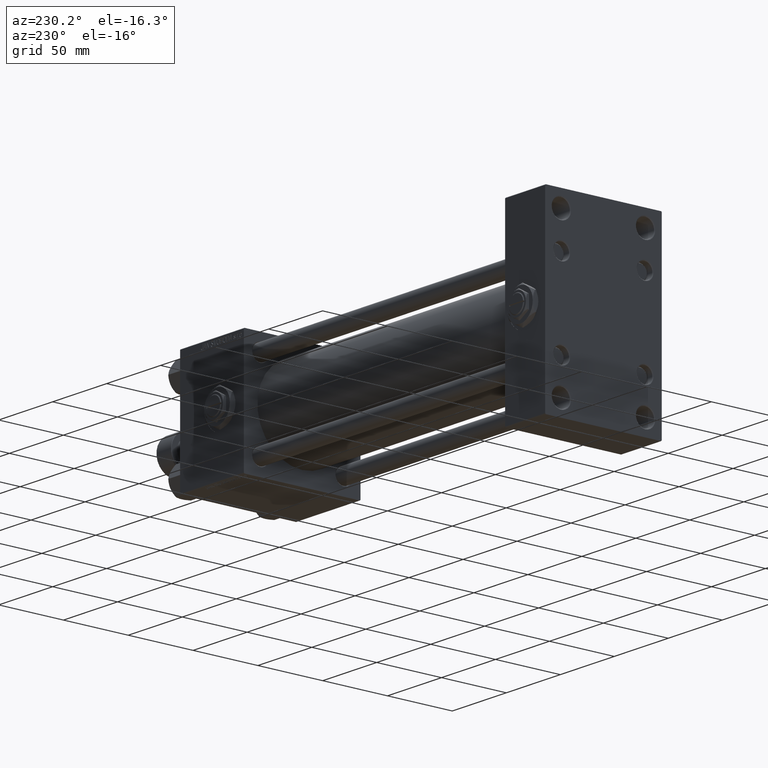
[diagram: clean part render]
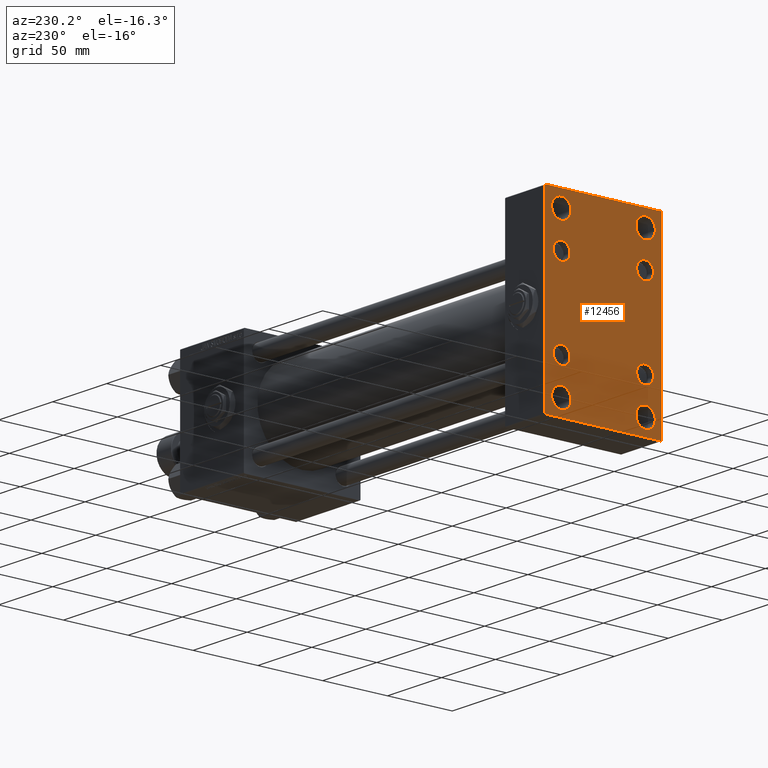
[diagram: same view with one face highlighted and labeled with its STEP entity id]
A machine part, auxiliary view. The second image highlights one B-rep face of the part: STEP entity #12456.
In plain terms, the highlighted planar face has unit normal (-1, 0, 0).
Its self-contained STEP definition (entity closure, byte-faithful):
#144 = EDGE_CURVE ( 'NONE', #41813, #19771, #34160, .T. ) ;
#221 = AXIS2_PLACEMENT_3D ( 'NONE', #839, #5359, #49994 ) ;
#443 = EDGE_CURVE ( 'NONE', #27860, #31811, #31834, .T. ) ;
#830 = CARTESIAN_POINT ( 'NONE',  ( 0.000000000000000000, -32.14999999999997726, 25.64999999999997726 ) ) ;
#839 = CARTESIAN_POINT ( 'NONE',  ( 0.000000000000000000, -32.14999999999997726, 32.15000000000001279 ) ) ;
#847 = DIRECTION ( 'NONE',  ( 1.000000000000000000, 0.000000000000000000, 0.000000000000000000 ) ) ;
#853 = CARTESIAN_POINT ( 'NONE',  ( 0.000000000000000000, -44.49999999999999289, 70.99999999999998579 ) ) ;
#1151 = EDGE_LOOP ( 'NONE', ( #48246, #41566 ) ) ;
#1348 = EDGE_LOOP ( 'NONE', ( #43045, #8161 ) ) ;
#1645 = CARTESIAN_POINT ( 'NONE',  ( 0.000000000000000000, 32.50000000000000000, 58.50000000000000000 ) ) ;
#1911 = DIRECTION ( 'NONE',  ( 1.000000000000000000, 0.000000000000000000, 0.000000000000000000 ) ) ;
#2572 = CARTESIAN_POINT ( 'NONE',  ( 0.000000000000000000, -45.00000000000000000, -70.50000000000000000 ) ) ;
#2639 = CARTESIAN_POINT ( 'NONE',  ( 0.000000000000000000, 32.14999999999999147, -32.15000000000000568 ) ) ;
#2861 = VERTEX_POINT ( 'NONE', #26474 ) ;
#3067 = EDGE_LOOP ( 'NONE', ( #27948, #37226, #22742, #25327, #51938, #15628, #32520, #5751 ) ) ;
#3335 = EDGE_LOOP ( 'NONE', ( #13355, #30677 ) ) ;
#3740 = CARTESIAN_POINT ( 'NONE',  ( 0.000000000000000000, -32.50000000000000000, -50.99999999999972289 ) ) ;
#4078 = AXIS2_PLACEMENT_3D ( 'NONE', #43390, #19717, #40197 ) ;
#4522 = DIRECTION ( 'NONE',  ( 1.000000000000000000, 0.000000000000000000, 0.000000000000000000 ) ) ;
#4937 = FACE_BOUND ( 'NONE', #46767, .T. ) ;
#4965 = EDGE_LOOP ( 'NONE', ( #5944, #6398 ) ) ;
#5199 = VERTEX_POINT ( 'NONE', #36738 ) ;
#5249 = EDGE_CURVE ( 'NONE', #5199, #6875, #21559, .T. ) ;
#5359 = DIRECTION ( 'NONE',  ( 1.000000000000000000, 0.000000000000000000, 0.000000000000000000 ) ) ;
#5751 = ORIENTED_EDGE ( 'NONE', *, *, #5249, .T. ) ;
#5870 = EDGE_CURVE ( 'NONE', #5199, #31811, #6456, .T. ) ;
#5905 = CARTESIAN_POINT ( 'NONE',  ( 0.000000000000000000, -44.49999999999999289, -70.99999999999998579 ) ) ;
#5944 = ORIENTED_EDGE ( 'NONE', *, *, #16408, .T. ) ;
#5997 = CARTESIAN_POINT ( 'NONE',  ( 0.000000000000000000, -32.14999999999997726, -32.15000000000001279 ) ) ;
#6159 = DIRECTION ( 'NONE',  ( 0.000000000000000000, 0.000000000000000000, 1.000000000000000000 ) ) ;
#6398 = ORIENTED_EDGE ( 'NONE', *, *, #34813, .T. ) ;
#6456 = LINE ( 'NONE', #26351, #26737 ) ;
#6797 = AXIS2_PLACEMENT_3D ( 'NONE', #5997, #46119, #41608 ) ;
#6815 = DIRECTION ( 'NONE',  ( 0.000000000000000000, 0.000000000000000000, 1.000000000000000000 ) ) ;
#6875 = VERTEX_POINT ( 'NONE', #9333 ) ;
#6933 = VERTEX_POINT ( 'NONE', #50516 ) ;
#7506 = CIRCLE ( 'NONE', #38898, 6.500000000000033751 ) ;
#7601 = DIRECTION ( 'NONE',  ( 1.000000000000000000, 0.000000000000000000, 0.000000000000000000 ) ) ;
#7934 = ORIENTED_EDGE ( 'NONE', *, *, #26421, .T. ) ;
#7939 = FACE_BOUND ( 'NONE', #10779, .T. ) ;
#8161 = ORIENTED_EDGE ( 'NONE', *, *, #41510, .T. ) ;
#8388 = EDGE_CURVE ( 'NONE', #52343, #27782, #42986, .T. ) ;
#8783 = EDGE_CURVE ( 'NONE', #46195, #21022, #48120, .T. ) ;
#9333 = CARTESIAN_POINT ( 'NONE',  ( 0.000000000000000000, 45.00000000000000711, 70.50000000000000000 ) ) ;
#9460 = CIRCLE ( 'NONE', #10298, 7.500000000000284217 ) ;
#10151 = CARTESIAN_POINT ( 'NONE',  ( -0.000000000000000000, 57.74999999999938183, 57.75000000000098055 ) ) ;
#10177 = LINE ( 'NONE', #10963, #22885 ) ;
#10298 = AXIS2_PLACEMENT_3D ( 'NONE', #38295, #46008, #10379 ) ;
#10379 = DIRECTION ( 'NONE',  ( 0.000000000000000000, 0.000000000000000000, 1.000000000000000000 ) ) ;
#10779 = EDGE_LOOP ( 'NONE', ( #39198, #38457 ) ) ;
#10785 = DIRECTION ( 'NONE',  ( 0.000000000000000000, 0.000000000000000000, -1.000000000000000000 ) ) ;
#10963 = CARTESIAN_POINT ( 'NONE',  ( 0.000000000000000000, -57.74999999999968026, -57.75000000000048317 ) ) ;
#11049 = CARTESIAN_POINT ( 'NONE',  ( 0.000000000000000000, 32.50000000000000000, -58.50000000000000711 ) ) ;
#11667 = PLANE ( 'NONE',  #36343 ) ;
#11874 = CIRCLE ( 'NONE', #6797, 6.500000000000033751 ) ;
#12142 = EDGE_CURVE ( 'NONE', #49798, #33621, #7506, .T. ) ;
#12456 = ADVANCED_FACE ( 'NONE', ( #4937, #17390, #7939, #33593, #49823, #31850, #27864, #15904, #48079 ), #11667, .T. ) ;
#12743 = CARTESIAN_POINT ( 'NONE',  ( 0.000000000000000000, 32.14999999999999147, 32.15000000000000568 ) ) ;
#13355 = ORIENTED_EDGE ( 'NONE', *, *, #18734, .T. ) ;
#13972 = VECTOR ( 'NONE', #17349, 1000.000000000000000 ) ;
#14079 = CARTESIAN_POINT ( 'NONE',  ( 0.000000000000000000, -32.50000000000000000, 66.00000000000022737 ) ) ;
#14835 = CARTESIAN_POINT ( 'NONE',  ( 0.000000000000000000, -45.00000000000000000, 70.49999999999998579 ) ) ;
#15628 = ORIENTED_EDGE ( 'NONE', *, *, #443, .T. ) ;
#15895 = DIRECTION ( 'NONE',  ( 1.000000000000000000, 0.000000000000000000, 0.000000000000000000 ) ) ;
#15904 = FACE_BOUND ( 'NONE', #38084, .T. ) ;
#16356 = VERTEX_POINT ( 'NONE', #19734 ) ;
#16408 = EDGE_CURVE ( 'NONE', #17199, #41417, #49987, .T. ) ;
#16982 = DIRECTION ( 'NONE',  ( -0.000000000000000000, -0.7071067811865279218, -0.7071067811865671127 ) ) ;
#17035 = DIRECTION ( 'NONE',  ( 0.000000000000000000, 0.000000000000000000, 1.000000000000000000 ) ) ;
#17199 = VERTEX_POINT ( 'NONE', #14079 ) ;
#17349 = DIRECTION ( 'NONE',  ( 0.000000000000000000, 0.000000000000000000, -1.000000000000000000 ) ) ;
#17359 = VECTOR ( 'NONE', #50014, 1000.000000000000000 ) ;
#17390 = FACE_BOUND ( 'NONE', #4965, .T. ) ;
#17783 = LINE ( 'NONE', #33981, #42882 ) ;
#18044 = CIRCLE ( 'NONE', #221, 6.500000000000033751 ) ;
#18092 = VECTOR ( 'NONE', #48063, 1000.000000000000000 ) ;
#18160 = ORIENTED_EDGE ( 'NONE', *, *, #12142, .T. ) ;
#18340 = VERTEX_POINT ( 'NONE', #46452 ) ;
#18344 = CARTESIAN_POINT ( 'NONE',  ( 0.000000000000000000, 32.14999999999999147, 38.65000000000004832 ) ) ;
#18375 = CIRCLE ( 'NONE', #49661, 6.500000000000033751 ) ;
#18734 = EDGE_CURVE ( 'NONE', #38402, #32702, #11874, .T. ) ;
#18889 = DIRECTION ( 'NONE',  ( 1.000000000000000000, 0.000000000000000000, 0.000000000000000000 ) ) ;
#18984 = CIRCLE ( 'NONE', #35995, 7.500000000000214939 ) ;
#19040 = EDGE_CURVE ( 'NONE', #35217, #28137, #10177, .T. ) ;
#19105 = CIRCLE ( 'NONE', #50399, 6.500000000000033751 ) ;
#19717 = DIRECTION ( 'NONE',  ( 1.000000000000000000, 0.000000000000000000, 0.000000000000000000 ) ) ;
#19734 = CARTESIAN_POINT ( 'NONE',  ( 0.000000000000000000, 32.50000000000000000, -66.00000000000028422 ) ) ;
#19771 = VERTEX_POINT ( 'NONE', #49571 ) ;
#21022 = VERTEX_POINT ( 'NONE', #47110 ) ;
#21559 = LINE ( 'NONE', #10151, #17359 ) ;
#22447 = ORIENTED_EDGE ( 'NONE', *, *, #44434, .T. ) ;
#22678 = DIRECTION ( 'NONE',  ( 0.000000000000000000, 0.000000000000000000, 1.000000000000000000 ) ) ;
#22742 = ORIENTED_EDGE ( 'NONE', *, *, #49343, .T. ) ;
#22885 = VECTOR ( 'NONE', #30364, 1000.000000000000000 ) ;
#23422 = DIRECTION ( 'NONE',  ( 0.000000000000000000, 0.000000000000000000, 1.000000000000000000 ) ) ;
#23864 = DIRECTION ( 'NONE',  ( -1.000000000000000000, 0.000000000000000000, -0.000000000000000000 ) ) ;
#24291 = EDGE_LOOP ( 'NONE', ( #7934, #36819 ) ) ;
#24307 = AXIS2_PLACEMENT_3D ( 'NONE', #2639, #15895, #47004 ) ;
#24788 = EDGE_CURVE ( 'NONE', #27860, #28137, #26986, .T. ) ;
#24953 = DIRECTION ( 'NONE',  ( 1.000000000000000000, 0.000000000000000000, 0.000000000000000000 ) ) ;
#25327 = ORIENTED_EDGE ( 'NONE', *, *, #19040, .T. ) ;
#25360 = VERTEX_POINT ( 'NONE', #38027 ) ;
#26228 = AXIS2_PLACEMENT_3D ( 'NONE', #40731, #847, #17035 ) ;
#26351 = CARTESIAN_POINT ( 'NONE',  ( 0.000000000000000000, 45.00000000000000711, 71.00000000000000000 ) ) ;
#26421 = EDGE_CURVE ( 'NONE', #25360, #16356, #9460, .T. ) ;
#26474 = CARTESIAN_POINT ( 'NONE',  ( 0.000000000000000000, 44.50000000000002132, -70.99999999999998579 ) ) ;
#26660 = DIRECTION ( 'NONE',  ( 1.000000000000000000, 0.000000000000000000, 0.000000000000000000 ) ) ;
#26714 = CARTESIAN_POINT ( 'NONE',  ( 0.000000000000000000, 32.50000000000000000, 66.00000000000022737 ) ) ;
#26737 = VECTOR ( 'NONE', #38870, 1000.000000000000000 ) ;
#26803 = CARTESIAN_POINT ( 'NONE',  ( 0.000000000000000000, -32.14999999999997726, 32.15000000000001279 ) ) ;
#26815 = AXIS2_PLACEMENT_3D ( 'NONE', #1645, #1911, #6159 ) ;
#26986 = LINE ( 'NONE', #31231, #39218 ) ;
#27782 = VERTEX_POINT ( 'NONE', #31302 ) ;
#27860 = VERTEX_POINT ( 'NONE', #14835 ) ;
#27864 = FACE_BOUND ( 'NONE', #1151, .T. ) ;
#27948 = ORIENTED_EDGE ( 'NONE', *, *, #50554, .T. ) ;
#28137 = VERTEX_POINT ( 'NONE', #2572 ) ;
#28943 = DIRECTION ( 'NONE',  ( 0.000000000000000000, 0.000000000000000000, 1.000000000000000000 ) ) ;
#29040 = LINE ( 'NONE', #37556, #13972 ) ;
#29173 = VECTOR ( 'NONE', #38208, 1000.000000000000000 ) ;
#30037 = AXIS2_PLACEMENT_3D ( 'NONE', #36663, #4522, #36928 ) ;
#30364 = DIRECTION ( 'NONE',  ( 0.000000000000000000, -0.7071067811865524577, 0.7071067811865426878 ) ) ;
#30677 = ORIENTED_EDGE ( 'NONE', *, *, #48751, .T. ) ;
#30845 = CARTESIAN_POINT ( 'NONE',  ( 0.000000000000000000, 32.14999999999999147, 32.15000000000000568 ) ) ;
#30879 = AXIS2_PLACEMENT_3D ( 'NONE', #26803, #43025, #38517 ) ;
#30925 = DIRECTION ( 'NONE',  ( 0.000000000000000000, 0.000000000000000000, 1.000000000000000000 ) ) ;
#30963 = DIRECTION ( 'NONE',  ( 0.000000000000000000, 0.000000000000000000, 1.000000000000000000 ) ) ;
#31231 = CARTESIAN_POINT ( 'NONE',  ( 0.000000000000000000, -45.00000000000000000, 70.99999999999998579 ) ) ;
#31302 = CARTESIAN_POINT ( 'NONE',  ( 0.000000000000000000, 32.50000000000000000, 50.99999999999977263 ) ) ;
#31401 = DIRECTION ( 'NONE',  ( 1.000000000000000000, 0.000000000000000000, 0.000000000000000000 ) ) ;
#31811 = VERTEX_POINT ( 'NONE', #853 ) ;
#31834 = LINE ( 'NONE', #39568, #18092 ) ;
#31850 = FACE_BOUND ( 'NONE', #3335, .T. ) ;
#31944 = EDGE_CURVE ( 'NONE', #6933, #40574, #48684, .T. ) ;
#32520 = ORIENTED_EDGE ( 'NONE', *, *, #5870, .F. ) ;
#32702 = VERTEX_POINT ( 'NONE', #36238 ) ;
#33527 = CIRCLE ( 'NONE', #35220, 7.500000000000229150 ) ;
#33593 = FACE_BOUND ( 'NONE', #24291, .T. ) ;
#33621 = VERTEX_POINT ( 'NONE', #40240 ) ;
#33981 = CARTESIAN_POINT ( 'NONE',  ( -0.000000000000000000, 57.75000000000122924, -57.74999999999802469 ) ) ;
#34160 = CIRCLE ( 'NONE', #30037, 7.500000000000284217 ) ;
#34813 = EDGE_CURVE ( 'NONE', #41417, #17199, #33527, .T. ) ;
#35217 = VERTEX_POINT ( 'NONE', #5905 ) ;
#35220 = AXIS2_PLACEMENT_3D ( 'NONE', #46873, #26660, #22678 ) ;
#35658 = CARTESIAN_POINT ( 'NONE',  ( 0.000000000000000000, -32.14999999999997726, -32.15000000000001279 ) ) ;
#35684 = CARTESIAN_POINT ( 'NONE',  ( 0.000000000000000000, -32.50000000000000000, 50.99999999999976552 ) ) ;
#35751 = CARTESIAN_POINT ( 'NONE',  ( 0.000000000000000000, -32.50000000000000000, -58.50000000000000711 ) ) ;
#35880 = AXIS2_PLACEMENT_3D ( 'NONE', #11049, #7601, #6815 ) ;
#35995 = AXIS2_PLACEMENT_3D ( 'NONE', #47684, #47954, #30925 ) ;
#36238 = CARTESIAN_POINT ( 'NONE',  ( 0.000000000000000000, -32.14999999999997726, -38.65000000000004832 ) ) ;
#36343 = AXIS2_PLACEMENT_3D ( 'NONE', #44091, #23864, #40103 ) ;
#36663 = CARTESIAN_POINT ( 'NONE',  ( 0.000000000000000000, -32.50000000000000000, -58.50000000000000711 ) ) ;
#36738 = CARTESIAN_POINT ( 'NONE',  ( 0.000000000000000000, 44.50000000000000711, 71.00000000000000000 ) ) ;
#36819 = ORIENTED_EDGE ( 'NONE', *, *, #42510, .T. ) ;
#36928 = DIRECTION ( 'NONE',  ( 0.000000000000000000, 0.000000000000000000, 1.000000000000000000 ) ) ;
#37226 = ORIENTED_EDGE ( 'NONE', *, *, #37651, .T. ) ;
#37473 = EDGE_CURVE ( 'NONE', #33621, #49798, #18375, .T. ) ;
#37556 = CARTESIAN_POINT ( 'NONE',  ( 0.000000000000000000, 45.00000000000000711, 71.00000000000000000 ) ) ;
#37578 = AXIS2_PLACEMENT_3D ( 'NONE', #35751, #51969, #30963 ) ;
#37651 = EDGE_CURVE ( 'NONE', #18340, #2861, #17783, .T. ) ;
#38027 = CARTESIAN_POINT ( 'NONE',  ( 0.000000000000000000, 32.50000000000000000, -50.99999999999972289 ) ) ;
#38084 = EDGE_LOOP ( 'NONE', ( #18160, #47031 ) ) ;
#38208 = DIRECTION ( 'NONE',  ( 0.000000000000000000, -1.000000000000000000, 0.000000000000000000 ) ) ;
#38295 = CARTESIAN_POINT ( 'NONE',  ( 0.000000000000000000, 32.50000000000000000, -58.50000000000000711 ) ) ;
#38402 = VERTEX_POINT ( 'NONE', #44476 ) ;
#38457 = ORIENTED_EDGE ( 'NONE', *, *, #42573, .T. ) ;
#38466 = CIRCLE ( 'NONE', #37578, 7.500000000000284217 ) ;
#38517 = DIRECTION ( 'NONE',  ( 0.000000000000000000, 0.000000000000000000, 1.000000000000000000 ) ) ;
#38870 = DIRECTION ( 'NONE',  ( 0.000000000000000000, -1.000000000000000000, -1.541976423090495387E-16 ) ) ;
#38898 = AXIS2_PLACEMENT_3D ( 'NONE', #12743, #24953, #28943 ) ;
#39198 = ORIENTED_EDGE ( 'NONE', *, *, #144, .T. ) ;
#39218 = VECTOR ( 'NONE', #10785, 1000.000000000000000 ) ;
#39298 = CIRCLE ( 'NONE', #35880, 7.500000000000284217 ) ;
#39568 = CARTESIAN_POINT ( 'NONE',  ( -0.000000000000000000, -57.75000000000092371, 57.74999999999852207 ) ) ;
#40103 = DIRECTION ( 'NONE',  ( -0.000000000000000000, 0.000000000000000000, 1.000000000000000000 ) ) ;
#40197 = DIRECTION ( 'NONE',  ( 0.000000000000000000, 0.000000000000000000, 1.000000000000000000 ) ) ;
#40240 = CARTESIAN_POINT ( 'NONE',  ( 0.000000000000000000, 32.14999999999999147, 25.64999999999997016 ) ) ;
#40485 = EDGE_CURVE ( 'NONE', #21022, #46195, #42264, .T. ) ;
#40574 = VERTEX_POINT ( 'NONE', #830 ) ;
#40731 = CARTESIAN_POINT ( 'NONE',  ( 0.000000000000000000, -32.50000000000000000, 58.50000000000000000 ) ) ;
#41417 = VERTEX_POINT ( 'NONE', #35684 ) ;
#41510 = EDGE_CURVE ( 'NONE', #40574, #6933, #18044, .T. ) ;
#41566 = ORIENTED_EDGE ( 'NONE', *, *, #8783, .T. ) ;
#41608 = DIRECTION ( 'NONE',  ( 0.000000000000000000, 0.000000000000000000, 1.000000000000000000 ) ) ;
#41813 = VERTEX_POINT ( 'NONE', #3740 ) ;
#42264 = CIRCLE ( 'NONE', #4078, 6.499999999999977796 ) ;
#42510 = EDGE_CURVE ( 'NONE', #16356, #25360, #39298, .T. ) ;
#42573 = EDGE_CURVE ( 'NONE', #19771, #41813, #38466, .T. ) ;
#42882 = VECTOR ( 'NONE', #16982, 1000.000000000000000 ) ;
#42986 = CIRCLE ( 'NONE', #26815, 7.500000000000214939 ) ;
#43025 = DIRECTION ( 'NONE',  ( 1.000000000000000000, 0.000000000000000000, 0.000000000000000000 ) ) ;
#43045 = ORIENTED_EDGE ( 'NONE', *, *, #31944, .T. ) ;
#43353 = DIRECTION ( 'NONE',  ( 0.000000000000000000, 0.000000000000000000, 1.000000000000000000 ) ) ;
#43390 = CARTESIAN_POINT ( 'NONE',  ( 0.000000000000000000, 32.14999999999999147, -32.15000000000000568 ) ) ;
#44091 = CARTESIAN_POINT ( 'NONE',  ( 0.000000000000000000, 0.000000000000000000, 0.000000000000000000 ) ) ;
#44434 = EDGE_CURVE ( 'NONE', #27782, #52343, #18984, .T. ) ;
#44476 = CARTESIAN_POINT ( 'NONE',  ( 0.000000000000000000, -32.14999999999997726, -25.64999999999997726 ) ) ;
#44917 = CARTESIAN_POINT ( 'NONE',  ( 0.000000000000000000, 32.14999999999999147, -38.64999999999998437 ) ) ;
#46008 = DIRECTION ( 'NONE',  ( 1.000000000000000000, 0.000000000000000000, 0.000000000000000000 ) ) ;
#46119 = DIRECTION ( 'NONE',  ( 1.000000000000000000, 0.000000000000000000, 0.000000000000000000 ) ) ;
#46195 = VERTEX_POINT ( 'NONE', #44917 ) ;
#46452 = CARTESIAN_POINT ( 'NONE',  ( 0.000000000000000000, 45.00000000000000711, -70.49999999999997158 ) ) ;
#46705 = CARTESIAN_POINT ( 'NONE',  ( 0.000000000000000000, 45.00000000000000711, -70.99999999999998579 ) ) ;
#46767 = EDGE_LOOP ( 'NONE', ( #49200, #22447 ) ) ;
#46873 = CARTESIAN_POINT ( 'NONE',  ( 0.000000000000000000, -32.50000000000000000, 58.50000000000000000 ) ) ;
#47004 = DIRECTION ( 'NONE',  ( 0.000000000000000000, 0.000000000000000000, 1.000000000000000000 ) ) ;
#47031 = ORIENTED_EDGE ( 'NONE', *, *, #37473, .T. ) ;
#47110 = CARTESIAN_POINT ( 'NONE',  ( 0.000000000000000000, 32.14999999999999147, -25.65000000000002700 ) ) ;
#47684 = CARTESIAN_POINT ( 'NONE',  ( 0.000000000000000000, 32.50000000000000000, 58.50000000000000000 ) ) ;
#47954 = DIRECTION ( 'NONE',  ( 1.000000000000000000, 0.000000000000000000, 0.000000000000000000 ) ) ;
#48063 = DIRECTION ( 'NONE',  ( -0.000000000000000000, 0.7071067811865328068, 0.7071067811865622277 ) ) ;
#48079 = FACE_OUTER_BOUND ( 'NONE', #3067, .T. ) ;
#48120 = CIRCLE ( 'NONE', #24307, 6.499999999999977796 ) ;
#48246 = ORIENTED_EDGE ( 'NONE', *, *, #40485, .T. ) ;
#48684 = CIRCLE ( 'NONE', #30879, 6.500000000000033751 ) ;
#48751 = EDGE_CURVE ( 'NONE', #32702, #38402, #19105, .T. ) ;
#49200 = ORIENTED_EDGE ( 'NONE', *, *, #8388, .T. ) ;
#49343 = EDGE_CURVE ( 'NONE', #2861, #35217, #51486, .T. ) ;
#49571 = CARTESIAN_POINT ( 'NONE',  ( 0.000000000000000000, -32.50000000000000000, -66.00000000000028422 ) ) ;
#49661 = AXIS2_PLACEMENT_3D ( 'NONE', #30845, #18889, #43353 ) ;
#49798 = VERTEX_POINT ( 'NONE', #18344 ) ;
#49823 = FACE_BOUND ( 'NONE', #1348, .T. ) ;
#49987 = CIRCLE ( 'NONE', #26228, 7.500000000000229150 ) ;
#49994 = DIRECTION ( 'NONE',  ( 0.000000000000000000, 0.000000000000000000, 1.000000000000000000 ) ) ;
#50014 = DIRECTION ( 'NONE',  ( 0.000000000000000000, 0.7071067811865573427, -0.7071067811865378028 ) ) ;
#50399 = AXIS2_PLACEMENT_3D ( 'NONE', #35658, #31401, #23422 ) ;
#50516 = CARTESIAN_POINT ( 'NONE',  ( 0.000000000000000000, -32.14999999999997726, 38.65000000000004832 ) ) ;
#50554 = EDGE_CURVE ( 'NONE', #6875, #18340, #29040, .T. ) ;
#51486 = LINE ( 'NONE', #46705, #29173 ) ;
#51938 = ORIENTED_EDGE ( 'NONE', *, *, #24788, .F. ) ;
#51969 = DIRECTION ( 'NONE',  ( 1.000000000000000000, 0.000000000000000000, 0.000000000000000000 ) ) ;
#52343 = VERTEX_POINT ( 'NONE', #26714 ) ;